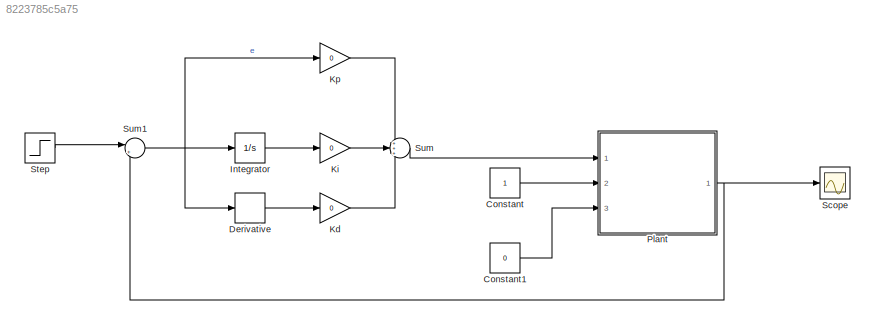
MODEL slx_8223785c5a75
KIND model
CONFIG AbsTol = auto
CONFIG FixedStep = auto
CONFIG MaxStep = auto
CONFIG MinStep = auto
CONFIG RelTol = 1e-3
CONFIG SampleTimeConstraint = Unconstrained
CONFIG Solver = VariableStepAuto
CONFIG SolverMode = Auto
CONFIG SolverName = VariableStepAuto
CONFIG StartTime = 0.0
CONFIG StopTime = 100
BLOCK [Constant] Constant
BLOCK [Constant] Constant1
  Value = 0
BLOCK [Derivative] Derivative
  CoefficientInTFapproximation = 0
BLOCK [Integrator] Integrator
  Ports = [1, 1]
BLOCK [Gain] Kd
  Gain = 0
  OutDataTypeStr = Inherit: Inherit via internal rule
  ParamDataTypeStr = Inherit: Inherit via internal rule
  SaturateOnIntegerOverflow = off
BLOCK [Gain] Ki
  Gain = 0
  OutDataTypeStr = Inherit: Inherit via internal rule
  ParamDataTypeStr = Inherit: Inherit via internal rule
  SaturateOnIntegerOverflow = off
BLOCK [Gain] Kp
  Gain = 0
  OutDataTypeStr = Inherit: Inherit via internal rule
  ParamDataTypeStr = Inherit: Inherit via internal rule
  SaturateOnIntegerOverflow = off
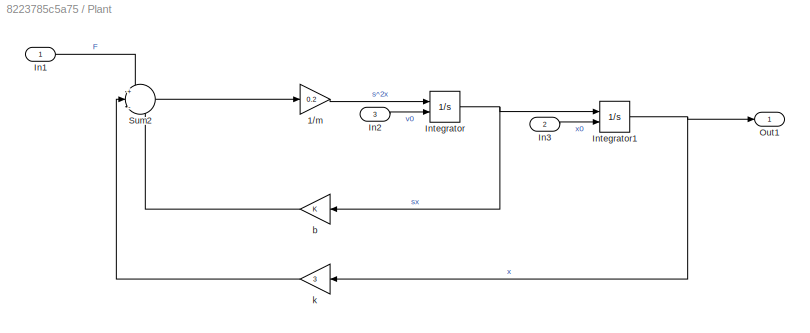
BLOCK [SubSystem] Plant
  Ports = [3, 1]
  RequestExecContextInheritance = off
  Variant = off
BLOCK [Gain] Plant/1//m
  Gain = 0.2
  OutDataTypeStr = Inherit: Inherit via internal rule
  ParamDataTypeStr = Inherit: Inherit via internal rule
  SaturateOnIntegerOverflow = off
BLOCK [Inport] Plant/In1
  IconDisplay = Signal name
BLOCK [Inport] Plant/In2
  IconDisplay = Signal name
  Port = 3
BLOCK [Inport] Plant/In3
  IconDisplay = Signal name
  Port = 2
BLOCK [Integrator] Plant/Integrator
  InitialConditionSource = external
  Ports = [2, 1]
BLOCK [Integrator] Plant/Integrator1
  InitialConditionSource = external
  Ports = [2, 1]
BLOCK [Outport] Plant/Out1
  IconDisplay = Signal name
BLOCK [Sum] Plant/Sum2
  IconShape = round
  InputSameDT = off
  Inputs = +|--
  OutDataTypeStr = Inherit: Inherit via internal rule
  Ports = [3, 1]
  SaturateOnIntegerOverflow = off
BLOCK [Gain] Plant/b
  OutDataTypeStr = Inherit: Inherit via internal rule
  ParamDataTypeStr = Inherit: Inherit via internal rule
  SaturateOnIntegerOverflow = off
BLOCK [Gain] Plant/k
  Gain = 3
  OutDataTypeStr = Inherit: Inherit via internal rule
  ParamDataTypeStr = Inherit: Inherit via internal rule
  SaturateOnIntegerOverflow = off
BLOCK [Scope] Scope
  Ports = [1]
  ScopeSpecificationString = Simulink.scopes.TimeScopeBlockCfg('CurrentConfiguration', extmgr.ConfigurationSet(extmgr.Configuration('Core','General UI',true),extmgr.Configuration('Core','Source UI',true),extmgr.Configuration('Sources','WiredSimulink',true),extmgr.Configuration('Visuals','Time Domain',true,'SerializedDisplays',{struct('MinYLimReal','-0.87009','MaxYLimReal','1.20779','YLabelReal','','MinYLimMag','0.00000','MaxY...<+1377ch>
BLOCK [Step] Step
  SampleTime = 0
  Time = 50
BLOCK [Sum] Sum
  IconShape = round
  InputSameDT = off
  Inputs = +++
  OutDataTypeStr = Inherit: Inherit via internal rule
  Ports = [3, 1]
  SaturateOnIntegerOverflow = off
BLOCK [Sum] Sum1
  IconShape = round
  InputSameDT = off
  Inputs = |+-
  OutDataTypeStr = Inherit: Inherit via internal rule
  Ports = [2, 1]
  SaturateOnIntegerOverflow = off
LINE Constant1:1 -> Plant:3
LINE Constant:1 -> Plant:2
LINE Derivative:1 -> Kd:1
LINE Integrator:1 -> Ki:1
LINE Kd:1 -> Sum:3
LINE Ki:1 -> Sum:2
LINE Kp:1 -> Sum:1
LINE Plant/1//m:1 -> Plant/Integrator:1
LINE Plant/In1:1 -> Plant/Sum2:1
LINE Plant/In2:1 -> Plant/Integrator:2
LINE Plant/In3:1 -> Plant/Integrator1:2
NET Plant/Integrator1:1 -> Plant/Out1:1, Plant/k:1
NET Plant/Integrator:1 -> Plant/Integrator1:1, Plant/b:1
LINE Plant/Sum2:1 -> Plant/1//m:1
LINE Plant/b:1 -> Plant/Sum2:3
LINE Plant/k:1 -> Plant/Sum2:2
NET Plant:1 -> Scope:1, Sum1:2
LINE Step:1 -> Sum1:1
NET Sum1:1 -> Derivative:1, Integrator:1, Kp:1
LINE Sum:1 -> Plant:1
note: NET lines group one-source signal fan-out (src -> all destinations, sorted); 1:1 wires keep LINE
